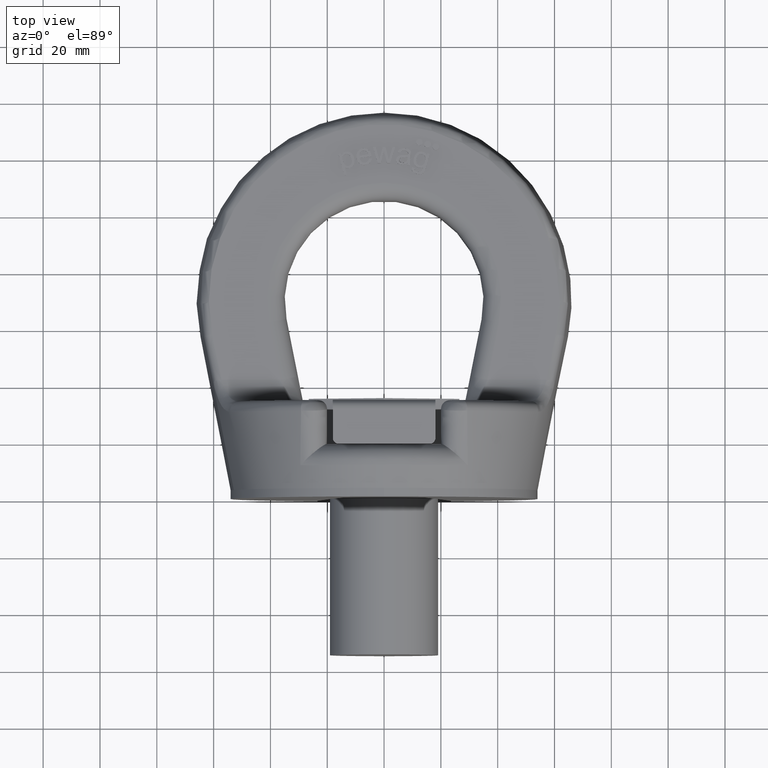
[diagram: clean part render]
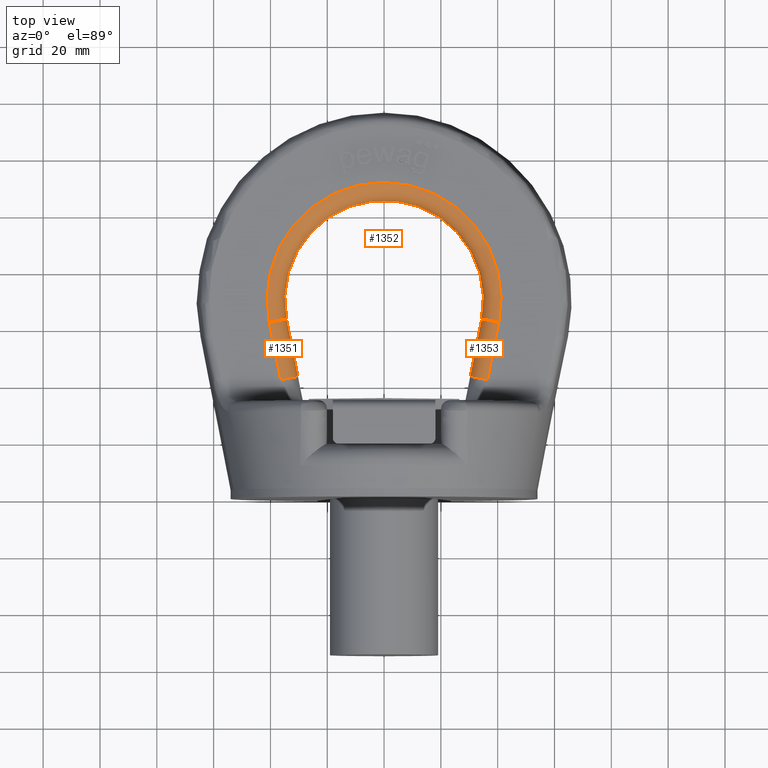
[diagram: same view with one multi-face feature highlighted, each face labeled with its STEP entity id]
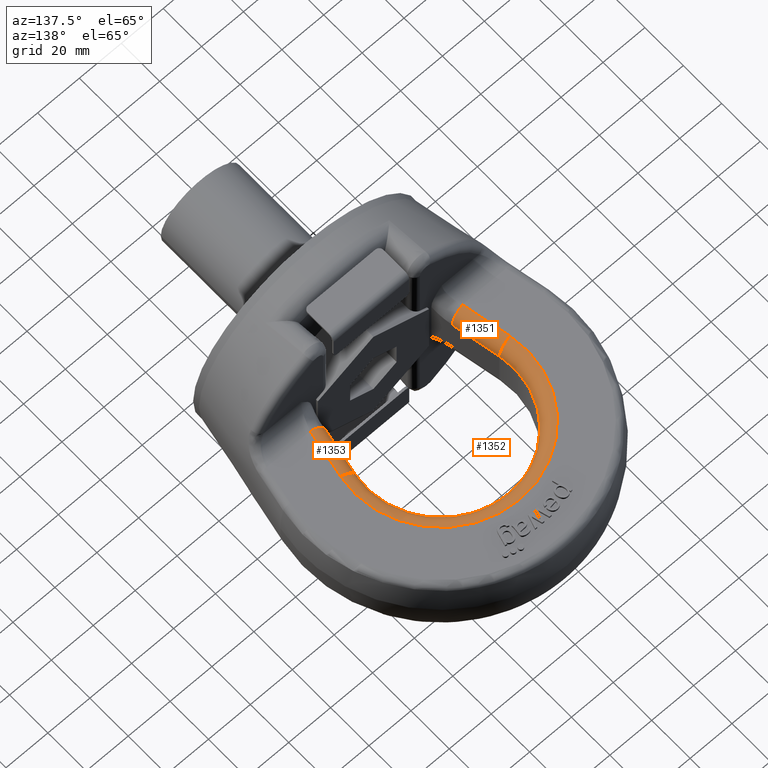
[diagram: same view with one multi-face feature highlighted, each face labeled with its STEP entity id]
A machine part, top view. The highlighted faces form ONE feature: a constant-radius fillet chain: 3 tangent blend faces with common blend radius 6.2 mm. The faces share edges in the B-rep.
A second angle (auxiliary view) of the same feature is appended — it is thin or edge-on in the first view.
Their STEP definitions:
[1] entity #1352 (Torus):
#1018=TOROIDAL_SURFACE('',#5198,41.2,6.2);
#1128=FACE_OUTER_BOUND('',#1868,.T.);
#1352=ADVANCED_FACE('',(#1128),#1018,.T.);
#1669=CIRCLE('',#5120,41.2);
#1687=CIRCLE('',#5147,35.);
#1703=CIRCLE('',#5195,6.2);
#1704=CIRCLE('',#5197,6.2);
#1868=EDGE_LOOP('',(#2976,#2977,#2978,#2979));
#2976=ORIENTED_EDGE('',*,*,#4447,.F.);
#2977=ORIENTED_EDGE('',*,*,#4396,.F.);
#2978=ORIENTED_EDGE('',*,*,#4448,.T.);
#2979=ORIENTED_EDGE('',*,*,#4296,.F.);
#3908=VERTEX_POINT('',#6399);
#3909=VERTEX_POINT('',#6400);
#4004=VERTEX_POINT('',#6877);
#4005=VERTEX_POINT('',#6879);
#4296=EDGE_CURVE('',#3908,#3909,#1669,.T.);
#4396=EDGE_CURVE('',#4004,#4005,#1687,.T.);
#4447=EDGE_CURVE('',#4005,#3908,#1703,.T.);
#4448=EDGE_CURVE('',#4004,#3909,#1704,.T.);
#5120=AXIS2_PLACEMENT_3D('',#6398,#5406,#5407);
#5147=AXIS2_PLACEMENT_3D('',#6878,#5508,#5509);
#5195=AXIS2_PLACEMENT_3D('',#7188,#5625,#5626);
#5197=AXIS2_PLACEMENT_3D('',#7190,#5629,#5630);
#5198=AXIS2_PLACEMENT_3D('',#7191,#5631,#5632);
#5406=DIRECTION('',(0.,-1.54886024640786E-16,-1.));
#5407=DIRECTION('',(0.,1.,-1.68419754949205E-16));
#5508=DIRECTION('',(0.,1.54886024640786E-16,1.));
#5509=DIRECTION('',(0.,1.,-1.48690583655155E-16));
#5625=DIRECTION('',(0.194495808030769,-0.980903349295158,0.));
#5626=DIRECTION('',(-0.980903349295158,-0.194495808030769,0.));
#5629=DIRECTION('',(0.194495808030769,0.980903349295158,0.));
#5630=DIRECTION('',(0.980903349295157,-0.194495808030769,0.));
#5631=DIRECTION('',(0.,-1.54886024640786E-16,-1.));
#5632=DIRECTION('',(0.,1.,-1.46390166749098E-16));
#6398=CARTESIAN_POINT('',(0.,70.,15.5));
#6399=CARTESIAN_POINT('',(-40.4132179909605,61.9867727091324,15.5));
#6400=CARTESIAN_POINT('',(40.4132179909605,61.9867727091324,15.5));
#6877=CARTESIAN_POINT('',(34.3316172253305,63.1926467189231,9.30000000000002));
#6878=CARTESIAN_POINT('',(0.,70.,9.30000000000002));
#6879=CARTESIAN_POINT('',(-34.3316172253305,63.1926467189231,9.30000000000002));
#7188=CARTESIAN_POINT('',(-40.4132179909605,61.9867727091324,9.30000000000001));
#7190=CARTESIAN_POINT('',(40.4132179909605,61.9867727091324,9.30000000000001));
#7191=CARTESIAN_POINT('',(0.,70.,9.30000000000002));
[2] entity #1353 (Cylinder):
#1064=CYLINDRICAL_SURFACE('',#5200,6.2);
#1129=FACE_OUTER_BOUND('',#1869,.T.);
#1353=ADVANCED_FACE('',(#1129),#1064,.T.);
#1704=CIRCLE('',#5197,6.2);
#1705=CIRCLE('',#5199,6.2);
#1869=EDGE_LOOP('',(#2980,#2981,#2982,#2983));
#2102=LINE('',#6401,#2382);
#2153=LINE('',#6893,#2433);
#2382=VECTOR('',#5408,1.);
#2433=VECTOR('',#5525,1.);
#2980=ORIENTED_EDGE('',*,*,#4448,.F.);
#2981=ORIENTED_EDGE('',*,*,#4404,.F.);
#2982=ORIENTED_EDGE('',*,*,#4449,.F.);
#2983=ORIENTED_EDGE('',*,*,#4297,.F.);
#3909=VERTEX_POINT('',#6400);
#3910=VERTEX_POINT('',#6402);
#4004=VERTEX_POINT('',#6877);
#4009=VERTEX_POINT('',#6892);
#4297=EDGE_CURVE('',#3909,#3910,#2102,.T.);
#4404=EDGE_CURVE('',#4009,#4004,#2153,.T.);
#4448=EDGE_CURVE('',#4004,#3909,#1704,.T.);
#4449=EDGE_CURVE('',#3910,#4009,#1705,.T.);
#5197=AXIS2_PLACEMENT_3D('',#7190,#5629,#5630);
#5199=AXIS2_PLACEMENT_3D('',#7192,#5633,#5634);
#5200=AXIS2_PLACEMENT_3D('',#7193,#5635,#5636);
#5408=DIRECTION('',(-0.194495808030769,-0.980903349295158,1.5192822032916E-16));
#5525=DIRECTION('',(0.194495808030769,0.980903349295158,-1.5192822032916E-16));
#5629=DIRECTION('',(0.194495808030769,0.980903349295158,0.));
#5630=DIRECTION('',(0.980903349295157,-0.194495808030769,0.));
#5633=DIRECTION('',(-0.19449580803077,-0.980903349295158,0.));
#5634=DIRECTION('',(0.980903349295157,-0.19449580803077,0.));
#5635=DIRECTION('',(0.194495808030769,0.980903349295158,-1.5192822032916E-16));
#5636=DIRECTION('',(-0.980903349295158,0.19449580803077,0.));
#6400=CARTESIAN_POINT('',(40.4132179909605,61.9867727091324,15.5));
#6401=CARTESIAN_POINT('',(36.161519897655,40.5441259902092,15.5));
#6402=CARTESIAN_POINT('',(36.4006234139047,41.75,15.5));
#6877=CARTESIAN_POINT('',(34.3316172253305,63.1926467189231,9.30000000000002));
#6892=CARTESIAN_POINT('',(30.3190226482747,42.9558740097908,9.30000000000002));
#6893=CARTESIAN_POINT('',(34.3316172253305,63.1926467189231,9.30000000000001));
#7190=CARTESIAN_POINT('',(40.4132179909605,61.9867727091324,9.30000000000001));
#7192=CARTESIAN_POINT('',(36.4006234139046,41.75,9.30000000000001));
#7193=CARTESIAN_POINT('',(59.9059965476589,160.29496745598,9.3));
[3] entity #1351 (Cylinder):
#1063=CYLINDRICAL_SURFACE('',#5196,6.2);
#1127=FACE_OUTER_BOUND('',#1867,.T.);
#1351=ADVANCED_FACE('',(#1127),#1063,.T.);
#1702=CIRCLE('',#5194,6.2);
#1703=CIRCLE('',#5195,6.2);
#1867=EDGE_LOOP('',(#2972,#2973,#2974,#2975));
#2105=LINE('',#6419,#2385);
#2151=LINE('',#6884,#2431);
#2385=VECTOR('',#5413,1.);
#2431=VECTOR('',#5515,1.);
#2972=ORIENTED_EDGE('',*,*,#4446,.F.);
#2973=ORIENTED_EDGE('',*,*,#4399,.F.);
#2974=ORIENTED_EDGE('',*,*,#4447,.T.);
#2975=ORIENTED_EDGE('',*,*,#4303,.F.);
#3908=VERTEX_POINT('',#6399);
#3915=VERTEX_POINT('',#6418);
#4005=VERTEX_POINT('',#6879);
#4007=VERTEX_POINT('',#6885);
#4303=EDGE_CURVE('',#3915,#3908,#2105,.T.);
#4399=EDGE_CURVE('',#4005,#4007,#2151,.T.);
#4446=EDGE_CURVE('',#4007,#3915,#1702,.T.);
#4447=EDGE_CURVE('',#4005,#3908,#1703,.T.);
#5194=AXIS2_PLACEMENT_3D('',#7157,#5623,#5624);
#5195=AXIS2_PLACEMENT_3D('',#7188,#5625,#5626);
#5196=AXIS2_PLACEMENT_3D('',#7189,#5627,#5628);
#5413=DIRECTION('',(-0.194495808030769,0.980903349295158,-1.5192822032916E-16));
#5515=DIRECTION('',(0.194495808030769,-0.980903349295158,1.5192822032916E-16));
#5623=DIRECTION('',(0.194495808030767,-0.980903349295158,-2.19560782927302E-15));
#5624=DIRECTION('',(-0.980903349295158,-0.194495808030767,0.));
#5625=DIRECTION('',(0.194495808030769,-0.980903349295158,0.));
#5626=DIRECTION('',(-0.980903349295158,-0.194495808030769,0.));
#5627=DIRECTION('',(0.194495808030769,-0.980903349295158,1.5192822032916E-16));
#5628=DIRECTION('',(0.980903349295158,0.194495808030768,0.));
#6399=CARTESIAN_POINT('',(-40.4132179909605,61.9867727091324,15.5));
#6418=CARTESIAN_POINT('',(-36.4006234139047,41.75,15.5));
#6419=CARTESIAN_POINT('',(-40.4132179909605,61.9867727091324,15.5));
#6879=CARTESIAN_POINT('',(-34.3316172253305,63.1926467189231,9.30000000000002));
#6884=CARTESIAN_POINT('',(-30.079919132025,41.75,9.30000000000001));
#6885=CARTESIAN_POINT('',(-30.3190226482747,42.9558740097908,9.30000000000001));
#7157=CARTESIAN_POINT('',(-36.4006234139046,41.75,9.30000000000001));
#7188=CARTESIAN_POINT('',(-40.4132179909605,61.9867727091324,9.30000000000001));
#7189=CARTESIAN_POINT('',(-49.919241041492,109.92862782237,9.3));